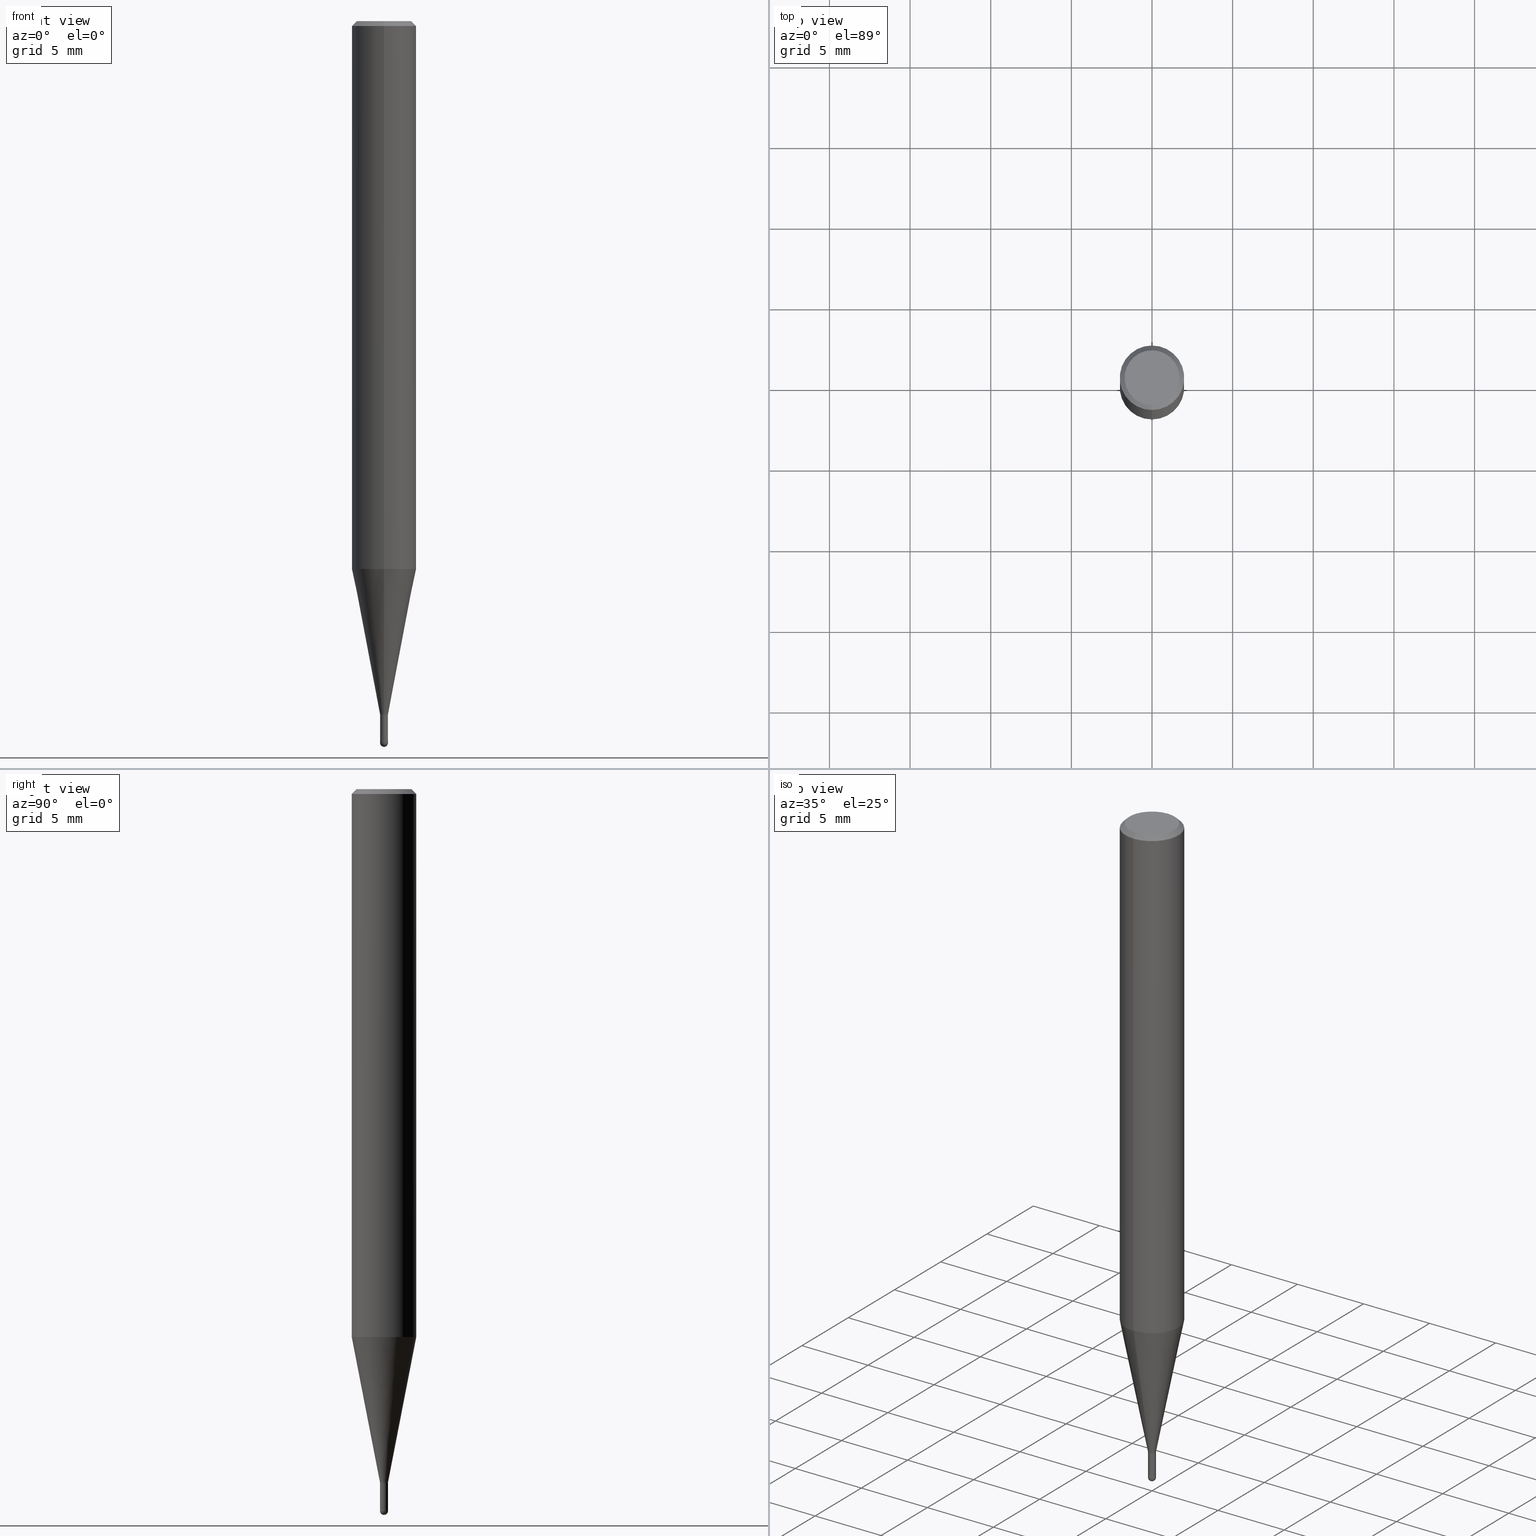
[diagram: canonical four-view strip — front | top / right | iso, engineering-drawing reading convention]
A machine part, canonical four-view strip (front | top / right | iso — engineering-drawing reading convention). The complete STEP part file that produces these views, byte-faithful:
ISO-10303-21;
HEADER;
FILE_DESCRIPTION(('no description'),'unknown implementation level');
FILE_NAME('CSELB2005-020-Huellk.stp','  ',('CIMSOURCE GmbH'),('CADClick - KiM GmbH - www.kimweb.de'),'unknown preprocess','ACIS','unknown authorization');
FILE_SCHEMA(('automotive_design'));
ENDSEC;
DATA;
#1=MECHANICAL_DESIGN_GEOMETRIC_PRESENTATION_REPRESENTATION(' ',(#14,#15,#16,#17,#18,#19,#20,#21,#22,#23,#24,#25,#26,#27,#28,#29,#30,#31,#32,#33,#34,#35,#36,#37,#38,#39,#40,#41,#42,#43,#44,#45,#46,#47,#48,#49,#50,#51,#52,#53,#54,#55,#56,#57,#58,#59,#60,#61,#62,#63,#64,#65,#66,#67,#68,#69,#70,#71,#72,#73,#74),#10);
#2=PRODUCT_DEFINITION_CONTEXT('',#75,'design');
#3=APPLICATION_PROTOCOL_DEFINITION('INTERNATIONAL STANDARD','automotive_design',1994,#75);
#4=PRODUCT_CATEGORY_RELATIONSHIP('NONE','NONE',#76,#77);
#5=SHAPE_DEFINITION_REPRESENTATION(#78,#79);
#6=PRODUCT_DEFINITION_CONTEXT('',#80,'design');
#7=APPLICATION_PROTOCOL_DEFINITION('INTERNATIONAL STANDARD','automotive_design',1994,#80);
#8=PRODUCT_CATEGORY_RELATIONSHIP('NONE','NONE',#81,#82);
#9=SHAPE_DEFINITION_REPRESENTATION(#83,#84);
#10= (GEOMETRIC_REPRESENTATION_CONTEXT(3)GLOBAL_UNCERTAINTY_ASSIGNED_CONTEXT((#87))GLOBAL_UNIT_ASSIGNED_CONTEXT((#89,#90,#91))REPRESENTATION_CONTEXT('NONE','WORKSPACE'));
#14=STYLED_ITEM('',(#93),#94);
#15=STYLED_ITEM('',(#95),#96);
#16=STYLED_ITEM('',(#97),#98);
#17=STYLED_ITEM('',(#99),#100);
#18=STYLED_ITEM('',(#101),#102);
#19=STYLED_ITEM('',(#103),#104);
#20=STYLED_ITEM('',(#105),#106);
#21=STYLED_ITEM('',(#107),#108);
#22=STYLED_ITEM('',(#109),#110);
#23=STYLED_ITEM('',(#111),#112);
#24=STYLED_ITEM('',(#113),#114);
#25=STYLED_ITEM('',(#115),#116);
#26=STYLED_ITEM('',(#117),#118);
#27=STYLED_ITEM('',(#119),#120);
#28=STYLED_ITEM('',(#121),#122);
#29=STYLED_ITEM('',(#123),#124);
#30=STYLED_ITEM('',(#125),#126);
#31=STYLED_ITEM('',(#127),#128);
#32=STYLED_ITEM('',(#129),#130);
#33=STYLED_ITEM('',(#131),#132);
#34=STYLED_ITEM('',(#133),#134);
#35=STYLED_ITEM('',(#135),#136);
#36=STYLED_ITEM('',(#137),#138);
#37=STYLED_ITEM('',(#139),#140);
#38=STYLED_ITEM('',(#141),#142);
#39=STYLED_ITEM('',(#143),#144);
#40=STYLED_ITEM('',(#145),#146);
#41=STYLED_ITEM('',(#147),#148);
#42=STYLED_ITEM('',(#149),#150);
#43=STYLED_ITEM('',(#151),#152);
#44=STYLED_ITEM('',(#153),#154);
#45=STYLED_ITEM('',(#155),#156);
#46=STYLED_ITEM('',(#157),#158);
#47=STYLED_ITEM('',(#159),#160);
#48=STYLED_ITEM('',(#161),#162);
#49=STYLED_ITEM('',(#163),#164);
#50=STYLED_ITEM('',(#165),#166);
#51=STYLED_ITEM('',(#167),#168);
#52=STYLED_ITEM('',(#169),#170);
#53=STYLED_ITEM('',(#171),#172);
#54=STYLED_ITEM('',(#173),#174);
#55=STYLED_ITEM('',(#175),#176);
#56=STYLED_ITEM('',(#177),#178);
#57=STYLED_ITEM('',(#179),#180);
#58=STYLED_ITEM('',(#181),#182);
#59=STYLED_ITEM('',(#183),#184);
#60=STYLED_ITEM('',(#185),#186);
#61=STYLED_ITEM('',(#187),#188);
#62=STYLED_ITEM('',(#189),#190);
#63=STYLED_ITEM('',(#191),#192);
#64=STYLED_ITEM('',(#193),#194);
#65=STYLED_ITEM('',(#195),#196);
#66=STYLED_ITEM('',(#197),#198);
#67=STYLED_ITEM('',(#199),#200);
#68=STYLED_ITEM('',(#201),#202);
#69=STYLED_ITEM('',(#203),#204);
#70=STYLED_ITEM('',(#205),#206);
#71=STYLED_ITEM('',(#207),#208);
#72=STYLED_ITEM('',(#209),#210);
#73=STYLED_ITEM('',(#211),#212);
#74=STYLED_ITEM('',(#213),#214);
#75=APPLICATION_CONTEXT(' ');
#76=PRODUCT_CATEGORY('part','NONE');
#77=PRODUCT_RELATED_PRODUCT_CATEGORY('detail',' ',(#215));
#78=PRODUCT_DEFINITION_SHAPE('NONE','NONE',#216);
#79=ADVANCED_BREP_SHAPE_REPRESENTATION('1',(#194,#217),#10);
#80=APPLICATION_CONTEXT(' ');
#81=PRODUCT_CATEGORY('part','NONE');
#82=PRODUCT_RELATED_PRODUCT_CATEGORY('detail',' ',(#218));
#83=PRODUCT_DEFINITION_SHAPE('NONE','NONE',#219);
#84=ADVANCED_BREP_SHAPE_REPRESENTATION('2',(#100,#220),#10);
#87=UNCERTAINTY_MEASURE_WITH_UNIT(LENGTH_MEASURE(1.0E-006),#89,'','');
#89= (CONVERSION_BASED_UNIT('MILLIMETRE',#223)LENGTH_UNIT()NAMED_UNIT(#226));
#90= (NAMED_UNIT(#228)PLANE_ANGLE_UNIT()SI_UNIT($,.RADIAN.));
#91= (NAMED_UNIT(#228)SOLID_ANGLE_UNIT()SI_UNIT($,.STERADIAN.));
#93=PRESENTATION_STYLE_ASSIGNMENT((#234));
#94=VERTEX_POINT('',#235);
#95=PRESENTATION_STYLE_ASSIGNMENT((#236));
#96=EDGE_CURVE('',#146,#140,#237,.T.);
#97=PRESENTATION_STYLE_ASSIGNMENT((#238));
#98=VERTEX_POINT('',#239);
#99=PRESENTATION_STYLE_ASSIGNMENT((#240));
#100=MANIFOLD_SOLID_BREP('2',#241);
#101=PRESENTATION_STYLE_ASSIGNMENT((#242));
#102=EDGE_CURVE('',#188,#146,#243,.T.);
#103=PRESENTATION_STYLE_ASSIGNMENT((#244));
#104=ADVANCED_FACE('',(#245),#246,.T.);
#105=PRESENTATION_STYLE_ASSIGNMENT((#247));
#106=VERTEX_POINT('',#248);
#107=PRESENTATION_STYLE_ASSIGNMENT((#249));
#108=ADVANCED_FACE('',(#250),#251,.T.);
#109=PRESENTATION_STYLE_ASSIGNMENT((#252));
#110=EDGE_CURVE('',#188,#178,#253,.T.);
#111=PRESENTATION_STYLE_ASSIGNMENT((#254));
#112=VERTEX_POINT('',#255);
#113=PRESENTATION_STYLE_ASSIGNMENT((#256));
#114=ADVANCED_FACE('',(#257),#258,.T.);
#115=PRESENTATION_STYLE_ASSIGNMENT((#259));
#116=ADVANCED_FACE('',(#260),#261,.T.);
#117=PRESENTATION_STYLE_ASSIGNMENT((#262));
#118=ADVANCED_FACE('',(#263,#264),#265,.T.);
#119=PRESENTATION_STYLE_ASSIGNMENT((#266));
#120=VERTEX_POINT('',#267);
#121=PRESENTATION_STYLE_ASSIGNMENT((#268));
#122=VERTEX_POINT('',#269);
#123=PRESENTATION_STYLE_ASSIGNMENT((#270));
#124=ADVANCED_FACE('',(#271),#272,.T.);
#125=PRESENTATION_STYLE_ASSIGNMENT((#273));
#126=VERTEX_POINT('',#274);
#127=PRESENTATION_STYLE_ASSIGNMENT((#275));
#128=EDGE_CURVE('',#144,#98,#276,.T.);
#129=PRESENTATION_STYLE_ASSIGNMENT((#277));
#130=EDGE_CURVE('',#120,#182,#278,.T.);
#131=PRESENTATION_STYLE_ASSIGNMENT((#279));
#132=VERTEX_POINT('',#280);
#133=PRESENTATION_STYLE_ASSIGNMENT((#281));
#134=VERTEX_POINT('',#282);
#135=PRESENTATION_STYLE_ASSIGNMENT((#283));
#136=VERTEX_POINT('',#284);
#137=PRESENTATION_STYLE_ASSIGNMENT((#285));
#138=ADVANCED_FACE('',(#286),#287,.T.);
#139=PRESENTATION_STYLE_ASSIGNMENT((#288));
#140=VERTEX_POINT('',#289);
#141=PRESENTATION_STYLE_ASSIGNMENT((#290));
#142=EDGE_CURVE('',#106,#112,#291,.T.);
#143=PRESENTATION_STYLE_ASSIGNMENT((#292));
#144=VERTEX_POINT('',#293);
#145=PRESENTATION_STYLE_ASSIGNMENT((#294));
#146=VERTEX_POINT('',#295);
#147=PRESENTATION_STYLE_ASSIGNMENT((#296));
#148=EDGE_CURVE('',#136,#126,#297,.T.);
#149=PRESENTATION_STYLE_ASSIGNMENT((#298));
#150=EDGE_CURVE('',#126,#94,#299,.T.);
#151=PRESENTATION_STYLE_ASSIGNMENT((#300));
#152=EDGE_CURVE('',#144,#112,#301,.T.);
#153=PRESENTATION_STYLE_ASSIGNMENT((#302));
#154=EDGE_CURVE('',#94,#132,#303,.T.);
#155=PRESENTATION_STYLE_ASSIGNMENT((#304));
#156=EDGE_CURVE('',#122,#136,#305,.T.);
#157=PRESENTATION_STYLE_ASSIGNMENT((#306));
#158=EDGE_CURVE('',#112,#144,#307,.T.);
#159=PRESENTATION_STYLE_ASSIGNMENT((#308));
#160=EDGE_CURVE('',#94,#122,#309,.T.);
#161=PRESENTATION_STYLE_ASSIGNMENT((#310));
#162=EDGE_CURVE('',#126,#136,#311,.T.);
#163=PRESENTATION_STYLE_ASSIGNMENT((#312));
#164=ADVANCED_FACE('',(#313),#314,.T.);
#165=PRESENTATION_STYLE_ASSIGNMENT((#315));
#166=ADVANCED_FACE('',(#316),#317,.T.);
#167=PRESENTATION_STYLE_ASSIGNMENT((#318));
#168=ADVANCED_FACE('',(#319),#320,.T.);
#169=PRESENTATION_STYLE_ASSIGNMENT((#321));
#170=ADVANCED_FACE('',(#322),#323,.T.);
#171=PRESENTATION_STYLE_ASSIGNMENT((#324));
#172=EDGE_CURVE('',#132,#134,#325,.T.);
#173=PRESENTATION_STYLE_ASSIGNMENT((#326));
#174=ADVANCED_FACE('',(#327),#328,.T.);
#175=PRESENTATION_STYLE_ASSIGNMENT((#329));
#176=EDGE_CURVE('',#106,#98,#330,.T.);
#177=PRESENTATION_STYLE_ASSIGNMENT((#331));
#178=VERTEX_POINT('',#332);
#179=PRESENTATION_STYLE_ASSIGNMENT((#333));
#180=EDGE_CURVE('',#178,#188,#334,.T.);
#181=PRESENTATION_STYLE_ASSIGNMENT((#335));
#182=VERTEX_POINT('',#336);
#183=PRESENTATION_STYLE_ASSIGNMENT((#337));
#184=EDGE_CURVE('',#120,#144,#338,.T.);
#185=PRESENTATION_STYLE_ASSIGNMENT((#339));
#186=EDGE_CURVE('',#112,#182,#340,.T.);
#187=PRESENTATION_STYLE_ASSIGNMENT((#341));
#188=VERTEX_POINT('',#342);
#189=PRESENTATION_STYLE_ASSIGNMENT((#343));
#190=EDGE_CURVE('',#98,#106,#344,.T.);
#191=PRESENTATION_STYLE_ASSIGNMENT((#345));
#192=EDGE_CURVE('',#182,#120,#346,.T.);
#193=PRESENTATION_STYLE_ASSIGNMENT((#347));
#194=MANIFOLD_SOLID_BREP('1',#348);
#195=PRESENTATION_STYLE_ASSIGNMENT((#349));
#196=EDGE_CURVE('',#122,#94,#350,.T.);
#197=PRESENTATION_STYLE_ASSIGNMENT((#351));
#198=ADVANCED_FACE('',(#352),#353,.T.);
#199=PRESENTATION_STYLE_ASSIGNMENT((#354));
#200=EDGE_CURVE('',#140,#178,#355,.T.);
#201=PRESENTATION_STYLE_ASSIGNMENT((#356));
#202=EDGE_CURVE('',#140,#146,#357,.T.);
#203=PRESENTATION_STYLE_ASSIGNMENT((#358));
#204=ADVANCED_FACE('',(#359),#360,.T.);
#205=PRESENTATION_STYLE_ASSIGNMENT((#361));
#206=EDGE_CURVE('',#140,#146,#362,.T.);
#207=PRESENTATION_STYLE_ASSIGNMENT((#363));
#208=EDGE_CURVE('',#134,#122,#364,.T.);
#209=PRESENTATION_STYLE_ASSIGNMENT((#365));
#210=ADVANCED_FACE('',(#366),#367,.T.);
#211=PRESENTATION_STYLE_ASSIGNMENT((#368));
#212=EDGE_CURVE('',#134,#132,#369,.T.);
#213=PRESENTATION_STYLE_ASSIGNMENT((#370));
#214=ADVANCED_FACE('',(#371),#372,.T.);
#215=PRODUCT('1','1','PART-1-DESC',(#373));
#216=PRODUCT_DEFINITION('NONE','NONE',#374,#2);
#217=AXIS2_PLACEMENT_3D('',#375,#376,#377);
#218=PRODUCT('2','2','PART-2-DESC',(#378));
#219=PRODUCT_DEFINITION('NONE','NONE',#379,#6);
#220=AXIS2_PLACEMENT_3D('',#380,#381,#382);
#223=LENGTH_MEASURE_WITH_UNIT(LENGTH_MEASURE(1.0),#383);
#226=DIMENSIONAL_EXPONENTS(1.0,0.0,0.0,0.0,0.0,0.0,0.0);
#228=DIMENSIONAL_EXPONENTS(0.0,0.0,0.0,0.0,0.0,0.0,0.0);
#234=POINT_STYLE(' ',#384,POSITIVE_LENGTH_MEASURE(1.0E-006),#385);
#235=CARTESIAN_POINT('',(2.99967326368791E-017,-0.24495,-43.0));
#236=CURVE_STYLE('',#386,POSITIVE_LENGTH_MEASURE(1.0E-006),#387);
#237=CIRCLE('',#388,0.25);
#238=POINT_STYLE(' ',#389,POSITIVE_LENGTH_MEASURE(1.0E-006),#390);
#239=CARTESIAN_POINT('',(0.0,2.0,-33.971));
#240=SURFACE_STYLE_USAGE(.BOTH.,#391);
#241=CLOSED_SHELL('',(#116,#210,#124,#108,#214));
#242=CURVE_STYLE('',#392,POSITIVE_LENGTH_MEASURE(1.0E-006),#393);
#243=LINE('',#394,#395);
#244=SURFACE_STYLE_USAGE(.BOTH.,#396);
#245=FACE_OUTER_BOUND('',#397,.T.);
#246=CYLINDRICAL_SURFACE('',#398,2.0);
#247=POINT_STYLE(' ',#399,POSITIVE_LENGTH_MEASURE(1.0E-006),#400);
#248=CARTESIAN_POINT('',(2.44921270764475E-016,-2.0,-33.971));
#249=SURFACE_STYLE_USAGE(.BOTH.,#401);
#250=FACE_OUTER_BOUND('',#402,.T.);
#251=CONICAL_SURFACE('',#403,0.24995,0.000666666567901188);
#252=CURVE_STYLE('',#404,POSITIVE_LENGTH_MEASURE(1.0E-006),#405);
#253=CIRCLE('',#406,0.2499);
#254=POINT_STYLE(' ',#407,POSITIVE_LENGTH_MEASURE(1.0E-006),#408);
#255=CARTESIAN_POINT('',(2.44921270764475E-016,-2.0,-0.299999999999997));
#256=SURFACE_STYLE_USAGE(.BOTH.,#409);
#257=FACE_OUTER_BOUND('',#410,.T.);
#258=CONICAL_SURFACE('',#411,1.12245,0.191979834546789);
#259=SURFACE_STYLE_USAGE(.BOTH.,#412);
#260=FACE_OUTER_BOUND('',#413,.T.);
#261=SPHERICAL_SURFACE('',#414,0.25);
#262=SURFACE_STYLE_USAGE(.BOTH.,#415);
#263=FACE_OUTER_BOUND('',#416,.T.);
#264=FACE_BOUND('',#417,.T.);
#265=PLANE('',#418);
#266=POINT_STYLE(' ',#419,POSITIVE_LENGTH_MEASURE(1.0E-006),#420);
#267=CARTESIAN_POINT('',(0.0,1.7,0.0));
#268=POINT_STYLE(' ',#421,POSITIVE_LENGTH_MEASURE(1.0E-006),#422);
#269=CARTESIAN_POINT('',(0.0,0.24495,-43.0));
#270=SURFACE_STYLE_USAGE(.BOTH.,#423);
#271=FACE_OUTER_BOUND('',#424,.T.);
#272=PLANE('',#425);
#273=POINT_STYLE(' ',#426,POSITIVE_LENGTH_MEASURE(1.0E-006),#427);
#274=CARTESIAN_POINT('',(2.99967326368791E-017,-0.24495,-44.6));
#275=CURVE_STYLE('',#428,POSITIVE_LENGTH_MEASURE(1.0E-006),#429);
#276=LINE('',#430,#431);
#277=CURVE_STYLE('',#432,POSITIVE_LENGTH_MEASURE(1.0E-006),#433);
#278=CIRCLE('',#434,1.7);
#279=POINT_STYLE(' ',#435,POSITIVE_LENGTH_MEASURE(1.0E-006),#436);
#280=CARTESIAN_POINT('',(2.44915147732706E-016,-1.99995,-33.971));
#281=POINT_STYLE(' ',#437,POSITIVE_LENGTH_MEASURE(1.0E-006),#438);
#282=CARTESIAN_POINT('',(0.0,1.99995,-33.971));
#283=POINT_STYLE(' ',#439,POSITIVE_LENGTH_MEASURE(1.0E-006),#440);
#284=CARTESIAN_POINT('',(0.0,0.24495,-44.6));
#285=SURFACE_STYLE_USAGE(.BOTH.,#441);
#286=FACE_OUTER_BOUND('',#442,.T.);
#287=PLANE('',#443);
#288=POINT_STYLE(' ',#444,POSITIVE_LENGTH_MEASURE(1.0E-006),#445);
#289=CARTESIAN_POINT('',(3.06151588455594E-017,-0.25,-44.75));
#290=CURVE_STYLE('',#446,POSITIVE_LENGTH_MEASURE(1.0E-006),#447);
#291=LINE('',#448,#449);
#292=POINT_STYLE(' ',#450,POSITIVE_LENGTH_MEASURE(1.0E-006),#451);
#293=CARTESIAN_POINT('',(0.0,2.0,-0.299999999999997));
#294=POINT_STYLE(' ',#452,POSITIVE_LENGTH_MEASURE(1.0E-006),#453);
#295=CARTESIAN_POINT('',(0.0,0.25,-44.75));
#296=CURVE_STYLE('',#454,POSITIVE_LENGTH_MEASURE(1.0E-006),#455);
#297=CIRCLE('',#456,0.24495);
#298=CURVE_STYLE('',#457,POSITIVE_LENGTH_MEASURE(1.0E-006),#458);
#299=LINE('',#459,#460);
#300=CURVE_STYLE('',#461,POSITIVE_LENGTH_MEASURE(1.0E-006),#462);
#301=CIRCLE('',#463,2.0);
#302=CURVE_STYLE('',#464,POSITIVE_LENGTH_MEASURE(1.0E-006),#465);
#303=LINE('',#466,#467);
#304=CURVE_STYLE('',#468,POSITIVE_LENGTH_MEASURE(1.0E-006),#469);
#305=LINE('',#470,#471);
#306=CURVE_STYLE('',#472,POSITIVE_LENGTH_MEASURE(1.0E-006),#473);
#307=CIRCLE('',#474,2.0);
#308=CURVE_STYLE('',#475,POSITIVE_LENGTH_MEASURE(1.0E-006),#476);
#309=CIRCLE('',#477,0.24495);
#310=CURVE_STYLE('',#478,POSITIVE_LENGTH_MEASURE(1.0E-006),#479);
#311=CIRCLE('',#480,0.24495);
#312=SURFACE_STYLE_USAGE(.BOTH.,#481);
#313=FACE_OUTER_BOUND('',#482,.T.);
#314=PLANE('',#483);
#315=SURFACE_STYLE_USAGE(.BOTH.,#484);
#316=FACE_OUTER_BOUND('',#485,.T.);
#317=CONICAL_SURFACE('',#486,1.12245,0.191979834546789);
#318=SURFACE_STYLE_USAGE(.BOTH.,#487);
#319=FACE_OUTER_BOUND('',#488,.T.);
#320=CYLINDRICAL_SURFACE('',#489,2.0);
#321=SURFACE_STYLE_USAGE(.BOTH.,#490);
#322=FACE_OUTER_BOUND('',#491,.T.);
#323=CONICAL_SURFACE('',#492,1.85,0.785398163397453);
#324=CURVE_STYLE('',#493,POSITIVE_LENGTH_MEASURE(1.0E-006),#494);
#325=CIRCLE('',#495,1.99995);
#326=SURFACE_STYLE_USAGE(.BOTH.,#496);
#327=FACE_OUTER_BOUND('',#497,.T.);
#328=CYLINDRICAL_SURFACE('',#498,0.24495);
#329=CURVE_STYLE('',#499,POSITIVE_LENGTH_MEASURE(1.0E-006),#500);
#330=CIRCLE('',#501,2.0);
#331=POINT_STYLE(' ',#502,POSITIVE_LENGTH_MEASURE(1.0E-006),#503);
#332=CARTESIAN_POINT('',(3.06029127820212E-017,-0.2499,-44.6));
#333=CURVE_STYLE('',#504,POSITIVE_LENGTH_MEASURE(1.0E-006),#505);
#334=CIRCLE('',#506,0.2499);
#335=POINT_STYLE(' ',#507,POSITIVE_LENGTH_MEASURE(1.0E-006),#508);
#336=CARTESIAN_POINT('',(2.08183080149804E-016,-1.7,0.0));
#337=CURVE_STYLE('',#509,POSITIVE_LENGTH_MEASURE(1.0E-006),#510);
#338=LINE('',#511,#512);
#339=CURVE_STYLE('',#513,POSITIVE_LENGTH_MEASURE(1.0E-006),#514);
#340=LINE('',#515,#516);
#341=POINT_STYLE(' ',#517,POSITIVE_LENGTH_MEASURE(1.0E-006),#518);
#342=CARTESIAN_POINT('',(0.0,0.2499,-44.6));
#343=CURVE_STYLE('',#519,POSITIVE_LENGTH_MEASURE(1.0E-006),#520);
#344=CIRCLE('',#521,2.0);
#345=CURVE_STYLE('',#522,POSITIVE_LENGTH_MEASURE(1.0E-006),#523);
#346=CIRCLE('',#524,1.7);
#347=SURFACE_STYLE_USAGE(.BOTH.,#525);
#348=CLOSED_SHELL('',(#198,#166,#168,#204,#118,#164,#170,#104,#114,#174,#138));
#349=CURVE_STYLE('',#526,POSITIVE_LENGTH_MEASURE(1.0E-006),#527);
#350=CIRCLE('',#528,0.24495);
#351=SURFACE_STYLE_USAGE(.BOTH.,#529);
#352=FACE_OUTER_BOUND('',#530,.T.);
#353=CYLINDRICAL_SURFACE('',#531,0.24495);
#354=CURVE_STYLE('',#532,POSITIVE_LENGTH_MEASURE(1.0E-006),#533);
#355=LINE('',#534,#535);
#356=CURVE_STYLE('',#536,POSITIVE_LENGTH_MEASURE(1.0E-006),#537);
#357=CIRCLE('',#538,0.25);
#358=SURFACE_STYLE_USAGE(.BOTH.,#539);
#359=FACE_OUTER_BOUND('',#540,.T.);
#360=CONICAL_SURFACE('',#541,1.85,0.785398163397453);
#361=CURVE_STYLE('',#542,POSITIVE_LENGTH_MEASURE(1.0E-006),#543);
#362=CIRCLE('',#544,0.25);
#363=CURVE_STYLE('',#545,POSITIVE_LENGTH_MEASURE(1.0E-006),#546);
#364=LINE('',#547,#548);
#365=SURFACE_STYLE_USAGE(.BOTH.,#549);
#366=FACE_OUTER_BOUND('',#550,.T.);
#367=CONICAL_SURFACE('',#551,0.24995,0.000666666567901188);
#368=CURVE_STYLE('',#552,POSITIVE_LENGTH_MEASURE(1.0E-006),#553);
#369=CIRCLE('',#554,1.99995);
#370=SURFACE_STYLE_USAGE(.BOTH.,#555);
#371=FACE_OUTER_BOUND('',#556,.T.);
#372=SPHERICAL_SURFACE('',#557,0.25);
#373=PRODUCT_CONTEXT('',#75,'mechanical');
#374=PRODUCT_DEFINITION_FORMATION_WITH_SPECIFIED_SOURCE(' ','NONE',#215,.NOT_KNOWN.);
#375=CARTESIAN_POINT('',(0.0,0.0,0.0));
#376=DIRECTION('',(0.0,0.0,1.0));
#377=DIRECTION('',(1.0,0.0,0.0));
#378=PRODUCT_CONTEXT('',#80,'mechanical');
#379=PRODUCT_DEFINITION_FORMATION_WITH_SPECIFIED_SOURCE(' ','NONE',#218,.NOT_KNOWN.);
#380=CARTESIAN_POINT('',(0.0,0.0,0.0));
#381=DIRECTION('',(0.0,0.0,1.0));
#382=DIRECTION('',(1.0,0.0,0.0));
#383= (NAMED_UNIT(#226)LENGTH_UNIT()SI_UNIT(.MILLI.,.METRE.));
#384=PRE_DEFINED_MARKER('');
#385=COLOUR_RGB('',0.498039215803146,0.498039215803146,0.498039215803146);
#386=DRAUGHTING_PRE_DEFINED_CURVE_FONT('continuous');
#387=COLOUR_RGB('',0.800000011920929,0.800000011920929,0.800000011920929);
#388=AXIS2_PLACEMENT_3D('',#559,#560,#561);
#389=PRE_DEFINED_MARKER('');
#390=COLOUR_RGB('',0.498039215803146,0.498039215803146,0.498039215803146);
#391=SURFACE_SIDE_STYLE('',(#562));
#392=DRAUGHTING_PRE_DEFINED_CURVE_FONT('continuous');
#393=COLOUR_RGB('',0.800000011920929,0.800000011920929,0.800000011920929);
#394=CARTESIAN_POINT('',(-3.06090358137903E-017,0.24995,-44.675));
#395=VECTOR('',#563,1.0);
#396=SURFACE_SIDE_STYLE('',(#564));
#397=EDGE_LOOP('',(#565,#566,#567,#568));
#398=AXIS2_PLACEMENT_3D('',#569,#570,#571);
#399=PRE_DEFINED_MARKER('');
#400=COLOUR_RGB('',0.498039215803146,0.498039215803146,0.498039215803146);
#401=SURFACE_SIDE_STYLE('',(#572));
#402=EDGE_LOOP('',(#573,#574,#575,#576));
#403=AXIS2_PLACEMENT_3D('',#577,#578,#579);
#404=DRAUGHTING_PRE_DEFINED_CURVE_FONT('continuous');
#405=COLOUR_RGB('',0.800000011920929,0.800000011920929,0.800000011920929);
#406=AXIS2_PLACEMENT_3D('',#580,#581,#582);
#407=PRE_DEFINED_MARKER('');
#408=COLOUR_RGB('',0.498039215803146,0.498039215803146,0.498039215803146);
#409=SURFACE_SIDE_STYLE('',(#583));
#410=EDGE_LOOP('',(#584,#585,#586,#587));
#411=AXIS2_PLACEMENT_3D('',#588,#589,#590);
#412=SURFACE_SIDE_STYLE('',(#591));
#413=EDGE_LOOP('',(#592,#593));
#414=AXIS2_PLACEMENT_3D('',#594,#595,#596);
#415=SURFACE_SIDE_STYLE('',(#597));
#416=EDGE_LOOP('',(#598,#599));
#417=EDGE_LOOP('',(#600,#601));
#418=AXIS2_PLACEMENT_3D('',#602,#603,#604);
#419=PRE_DEFINED_MARKER('');
#420=COLOUR_RGB('',0.498039215803146,0.498039215803146,0.498039215803146);
#421=PRE_DEFINED_MARKER('');
#422=COLOUR_RGB('',0.498039215803146,0.498039215803146,0.498039215803146);
#423=SURFACE_SIDE_STYLE('',(#605));
#424=EDGE_LOOP('',(#606,#607));
#425=AXIS2_PLACEMENT_3D('',#608,#609,#610);
#426=PRE_DEFINED_MARKER('');
#427=COLOUR_RGB('',0.498039215803146,0.498039215803146,0.498039215803146);
#428=DRAUGHTING_PRE_DEFINED_CURVE_FONT('continuous');
#429=COLOUR_RGB('',0.498039215803146,0.498039215803146,0.498039215803146);
#430=CARTESIAN_POINT('',(-2.44921270764475E-016,2.0,-17.1355));
#431=VECTOR('',#611,1.0);
#432=DRAUGHTING_PRE_DEFINED_CURVE_FONT('continuous');
#433=COLOUR_RGB('',0.498039215803146,0.498039215803146,0.498039215803146);
#434=AXIS2_PLACEMENT_3D('',#612,#613,#614);
#435=PRE_DEFINED_MARKER('');
#436=COLOUR_RGB('',0.498039215803146,0.498039215803146,0.498039215803146);
#437=PRE_DEFINED_MARKER('');
#438=COLOUR_RGB('',0.498039215803146,0.498039215803146,0.498039215803146);
#439=PRE_DEFINED_MARKER('');
#440=COLOUR_RGB('',0.498039215803146,0.498039215803146,0.498039215803146);
#441=SURFACE_SIDE_STYLE('',(#615));
#442=EDGE_LOOP('',(#616,#617));
#443=AXIS2_PLACEMENT_3D('',#618,#619,#620);
#444=PRE_DEFINED_MARKER('');
#445=COLOUR_RGB('',0.800000011920929,0.800000011920929,0.800000011920929);
#446=DRAUGHTING_PRE_DEFINED_CURVE_FONT('continuous');
#447=COLOUR_RGB('',0.498039215803146,0.498039215803146,0.498039215803146);
#448=CARTESIAN_POINT('',(2.44921270764475E-016,-2.0,-17.1355));
#449=VECTOR('',#621,1.0);
#450=PRE_DEFINED_MARKER('');
#451=COLOUR_RGB('',0.498039215803146,0.498039215803146,0.498039215803146);
#452=PRE_DEFINED_MARKER('');
#453=COLOUR_RGB('',0.800000011920929,0.800000011920929,0.800000011920929);
#454=DRAUGHTING_PRE_DEFINED_CURVE_FONT('continuous');
#455=COLOUR_RGB('',0.498039215803146,0.498039215803146,0.498039215803146);
#456=AXIS2_PLACEMENT_3D('',#622,#623,#624);
#457=DRAUGHTING_PRE_DEFINED_CURVE_FONT('continuous');
#458=COLOUR_RGB('',0.498039215803146,0.498039215803146,0.498039215803146);
#459=CARTESIAN_POINT('',(2.99967326368791E-017,-0.24495,-43.8));
#460=VECTOR('',#625,1.0);
#461=DRAUGHTING_PRE_DEFINED_CURVE_FONT('continuous');
#462=COLOUR_RGB('',0.498039215803146,0.498039215803146,0.498039215803146);
#463=AXIS2_PLACEMENT_3D('',#626,#627,#628);
#464=DRAUGHTING_PRE_DEFINED_CURVE_FONT('continuous');
#465=COLOUR_RGB('',0.498039215803146,0.498039215803146,0.498039215803146);
#466=CARTESIAN_POINT('',(1.37455940184793E-016,-1.12245,-38.4855));
#467=VECTOR('',#629,1.0);
#468=DRAUGHTING_PRE_DEFINED_CURVE_FONT('continuous');
#469=COLOUR_RGB('',0.498039215803146,0.498039215803146,0.498039215803146);
#470=CARTESIAN_POINT('',(-2.99967326368791E-017,0.24495,-43.8));
#471=VECTOR('',#630,1.0);
#472=DRAUGHTING_PRE_DEFINED_CURVE_FONT('continuous');
#473=COLOUR_RGB('',0.498039215803146,0.498039215803146,0.498039215803146);
#474=AXIS2_PLACEMENT_3D('',#631,#632,#633);
#475=DRAUGHTING_PRE_DEFINED_CURVE_FONT('continuous');
#476=COLOUR_RGB('',0.498039215803146,0.498039215803146,0.498039215803146);
#477=AXIS2_PLACEMENT_3D('',#634,#635,#636);
#478=DRAUGHTING_PRE_DEFINED_CURVE_FONT('continuous');
#479=COLOUR_RGB('',0.498039215803146,0.498039215803146,0.498039215803146);
#480=AXIS2_PLACEMENT_3D('',#637,#638,#639);
#481=SURFACE_SIDE_STYLE('',(#640));
#482=EDGE_LOOP('',(#641,#642));
#483=AXIS2_PLACEMENT_3D('',#643,#644,#645);
#484=SURFACE_SIDE_STYLE('',(#646));
#485=EDGE_LOOP('',(#647,#648,#649,#650));
#486=AXIS2_PLACEMENT_3D('',#651,#652,#653);
#487=SURFACE_SIDE_STYLE('',(#654));
#488=EDGE_LOOP('',(#655,#656,#657,#658));
#489=AXIS2_PLACEMENT_3D('',#659,#660,#661);
#490=SURFACE_SIDE_STYLE('',(#662));
#491=EDGE_LOOP('',(#663,#664,#665,#666));
#492=AXIS2_PLACEMENT_3D('',#667,#668,#669);
#493=DRAUGHTING_PRE_DEFINED_CURVE_FONT('continuous');
#494=COLOUR_RGB('',0.498039215803146,0.498039215803146,0.498039215803146);
#495=AXIS2_PLACEMENT_3D('',#670,#671,#672);
#496=SURFACE_SIDE_STYLE('',(#673));
#497=EDGE_LOOP('',(#674,#675,#676,#677));
#498=AXIS2_PLACEMENT_3D('',#678,#679,#680);
#499=DRAUGHTING_PRE_DEFINED_CURVE_FONT('continuous');
#500=COLOUR_RGB('',0.498039215803146,0.498039215803146,0.498039215803146);
#501=AXIS2_PLACEMENT_3D('',#681,#682,#683);
#502=PRE_DEFINED_MARKER('');
#503=COLOUR_RGB('',0.800000011920929,0.800000011920929,0.800000011920929);
#504=DRAUGHTING_PRE_DEFINED_CURVE_FONT('continuous');
#505=COLOUR_RGB('',0.800000011920929,0.800000011920929,0.800000011920929);
#506=AXIS2_PLACEMENT_3D('',#684,#685,#686);
#507=PRE_DEFINED_MARKER('');
#508=COLOUR_RGB('',0.498039215803146,0.498039215803146,0.498039215803146);
#509=DRAUGHTING_PRE_DEFINED_CURVE_FONT('continuous');
#510=COLOUR_RGB('',0.498039215803146,0.498039215803146,0.498039215803146);
#511=CARTESIAN_POINT('',(-2.2655217545714E-016,1.85,-0.149999999999999));
#512=VECTOR('',#687,1.0);
#513=DRAUGHTING_PRE_DEFINED_CURVE_FONT('continuous');
#514=COLOUR_RGB('',0.498039215803146,0.498039215803146,0.498039215803146);
#515=CARTESIAN_POINT('',(2.2655217545714E-016,-1.85,-0.149999999999999));
#516=VECTOR('',#688,1.0);
#517=PRE_DEFINED_MARKER('');
#518=COLOUR_RGB('',0.800000011920929,0.800000011920929,0.800000011920929);
#519=DRAUGHTING_PRE_DEFINED_CURVE_FONT('continuous');
#520=COLOUR_RGB('',0.498039215803146,0.498039215803146,0.498039215803146);
#521=AXIS2_PLACEMENT_3D('',#689,#690,#691);
#522=DRAUGHTING_PRE_DEFINED_CURVE_FONT('continuous');
#523=COLOUR_RGB('',0.498039215803146,0.498039215803146,0.498039215803146);
#524=AXIS2_PLACEMENT_3D('',#692,#693,#694);
#525=SURFACE_SIDE_STYLE('',(#695));
#526=DRAUGHTING_PRE_DEFINED_CURVE_FONT('continuous');
#527=COLOUR_RGB('',0.498039215803146,0.498039215803146,0.498039215803146);
#528=AXIS2_PLACEMENT_3D('',#696,#697,#698);
#529=SURFACE_SIDE_STYLE('',(#699));
#530=EDGE_LOOP('',(#700,#701,#702,#703));
#531=AXIS2_PLACEMENT_3D('',#704,#705,#706);
#532=DRAUGHTING_PRE_DEFINED_CURVE_FONT('continuous');
#533=COLOUR_RGB('',0.800000011920929,0.800000011920929,0.800000011920929);
#534=CARTESIAN_POINT('',(3.06090358137903E-017,-0.24995,-44.675));
#535=VECTOR('',#707,1.0);
#536=DRAUGHTING_PRE_DEFINED_CURVE_FONT('continuous');
#537=COLOUR_RGB('',0.800000011920929,0.800000011920929,0.800000011920929);
#538=AXIS2_PLACEMENT_3D('',#708,#709,#710);
#539=SURFACE_SIDE_STYLE('',(#711));
#540=EDGE_LOOP('',(#712,#713,#714,#715));
#541=AXIS2_PLACEMENT_3D('',#716,#717,#718);
#542=DRAUGHTING_PRE_DEFINED_CURVE_FONT('continuous');
#543=COLOUR_RGB('',0.800000011920929,0.800000011920929,0.800000011920929);
#544=AXIS2_PLACEMENT_3D('',#719,#720,#721);
#545=DRAUGHTING_PRE_DEFINED_CURVE_FONT('continuous');
#546=COLOUR_RGB('',0.498039215803146,0.498039215803146,0.498039215803146);
#547=CARTESIAN_POINT('',(-1.37455940184793E-016,1.12245,-38.4855));
#548=VECTOR('',#722,1.0);
#549=SURFACE_SIDE_STYLE('',(#723));
#550=EDGE_LOOP('',(#724,#725,#726,#727));
#551=AXIS2_PLACEMENT_3D('',#728,#729,#730);
#552=DRAUGHTING_PRE_DEFINED_CURVE_FONT('continuous');
#553=COLOUR_RGB('',0.498039215803146,0.498039215803146,0.498039215803146);
#554=AXIS2_PLACEMENT_3D('',#731,#732,#733);
#555=SURFACE_SIDE_STYLE('',(#734));
#556=EDGE_LOOP('',(#735,#736));
#557=AXIS2_PLACEMENT_3D('',#737,#738,#739);
#559=CARTESIAN_POINT('',(0.0,0.0,-44.75));
#560=DIRECTION('',(0.0,0.0,-1.0));
#561=DIRECTION('',(0.0,1.0,0.0));
#562=SURFACE_STYLE_FILL_AREA(#740);
#563=DIRECTION('',(-8.16404054458392E-020,0.000666666518518495,-0.999999777777852));
#564=SURFACE_STYLE_FILL_AREA(#741);
#565=ORIENTED_EDGE('',*,*,#128,.T.);
#566=ORIENTED_EDGE('',*,*,#176,.F.);
#567=ORIENTED_EDGE('',*,*,#142,.T.);
#568=ORIENTED_EDGE('',*,*,#158,.T.);
#569=CARTESIAN_POINT('',(0.0,0.0,-17.1355));
#570=DIRECTION('',(-0.0,-0.0,1.0));
#571=DIRECTION('',(0.0,1.0,0.0));
#572=SURFACE_STYLE_FILL_AREA(#742);
#573=ORIENTED_EDGE('',*,*,#102,.T.);
#574=ORIENTED_EDGE('',*,*,#206,.F.);
#575=ORIENTED_EDGE('',*,*,#200,.T.);
#576=ORIENTED_EDGE('',*,*,#180,.T.);
#577=CARTESIAN_POINT('',(0.0,0.0,-44.675));
#578=DIRECTION('',(0.0,-0.0,-1.0));
#579=DIRECTION('',(0.0,1.0,0.0));
#580=CARTESIAN_POINT('',(0.0,0.0,-44.6));
#581=DIRECTION('',(0.0,0.0,-1.0));
#582=DIRECTION('',(0.0,1.0,0.0));
#583=SURFACE_STYLE_FILL_AREA(#743);
#584=ORIENTED_EDGE('',*,*,#208,.T.);
#585=ORIENTED_EDGE('',*,*,#160,.F.);
#586=ORIENTED_EDGE('',*,*,#154,.T.);
#587=ORIENTED_EDGE('',*,*,#172,.T.);
#588=CARTESIAN_POINT('',(0.0,0.0,-38.4855));
#589=DIRECTION('',(-0.0,-0.0,1.0));
#590=DIRECTION('',(0.0,1.0,0.0));
#591=SURFACE_STYLE_FILL_AREA(#744);
#592=ORIENTED_EDGE('',*,*,#202,.F.);
#593=ORIENTED_EDGE('',*,*,#206,.T.);
#594=CARTESIAN_POINT('',(0.0,0.0,-44.75));
#595=DIRECTION('',(0.0,1.0,0.0));
#596=DIRECTION('',(0.0,0.0,-1.0));
#597=SURFACE_STYLE_FILL_AREA(#745);
#598=ORIENTED_EDGE('',*,*,#190,.T.);
#599=ORIENTED_EDGE('',*,*,#176,.T.);
#600=ORIENTED_EDGE('',*,*,#212,.F.);
#601=ORIENTED_EDGE('',*,*,#172,.F.);
#602=CARTESIAN_POINT('',(0.0,1.0,-33.971));
#603=DIRECTION('',(0.0,0.0,-1.0));
#604=DIRECTION('',(0.0,1.0,0.0));
#605=SURFACE_STYLE_FILL_AREA(#746);
#606=ORIENTED_EDGE('',*,*,#110,.F.);
#607=ORIENTED_EDGE('',*,*,#180,.F.);
#608=CARTESIAN_POINT('',(0.0,0.12495,-44.6));
#609=DIRECTION('',(-0.0,0.0,1.0));
#610=DIRECTION('',(0.0,-1.0,0.0));
#611=DIRECTION('',(0.0,0.0,-1.0));
#612=CARTESIAN_POINT('',(0.0,0.0,0.0));
#613=DIRECTION('',(0.0,0.0,-1.0));
#614=DIRECTION('',(0.0,1.0,0.0));
#615=SURFACE_STYLE_FILL_AREA(#747);
#616=ORIENTED_EDGE('',*,*,#148,.T.);
#617=ORIENTED_EDGE('',*,*,#162,.T.);
#618=CARTESIAN_POINT('',(0.0,0.122475,-44.6));
#619=DIRECTION('',(0.0,0.0,-1.0));
#620=DIRECTION('',(0.0,1.0,0.0));
#621=DIRECTION('',(-0.0,-0.0,1.0));
#622=CARTESIAN_POINT('',(0.0,0.0,-44.6));
#623=DIRECTION('',(0.0,0.0,-1.0));
#624=DIRECTION('',(0.0,1.0,0.0));
#625=DIRECTION('',(-0.0,-0.0,1.0));
#626=CARTESIAN_POINT('',(0.0,0.0,-0.299999999999997));
#627=DIRECTION('',(0.0,0.0,-1.0));
#628=DIRECTION('',(0.0,1.0,0.0));
#629=DIRECTION('',(2.336582348441E-017,-0.19080272947693,0.981628401394414));
#630=DIRECTION('',(0.0,0.0,-1.0));
#631=CARTESIAN_POINT('',(0.0,0.0,-0.299999999999997));
#632=DIRECTION('',(0.0,0.0,-1.0));
#633=DIRECTION('',(0.0,1.0,0.0));
#634=CARTESIAN_POINT('',(0.0,0.0,-43.0));
#635=DIRECTION('',(0.0,0.0,-1.0));
#636=DIRECTION('',(0.0,1.0,0.0));
#637=CARTESIAN_POINT('',(0.0,0.0,-44.6));
#638=DIRECTION('',(0.0,0.0,-1.0));
#639=DIRECTION('',(0.0,1.0,0.0));
#640=SURFACE_STYLE_FILL_AREA(#748);
#641=ORIENTED_EDGE('',*,*,#130,.F.);
#642=ORIENTED_EDGE('',*,*,#192,.F.);
#643=CARTESIAN_POINT('',(0.0,0.85,0.0));
#644=DIRECTION('',(-0.0,0.0,1.0));
#645=DIRECTION('',(0.0,-1.0,0.0));
#646=SURFACE_STYLE_FILL_AREA(#749);
#647=ORIENTED_EDGE('',*,*,#208,.F.);
#648=ORIENTED_EDGE('',*,*,#212,.T.);
#649=ORIENTED_EDGE('',*,*,#154,.F.);
#650=ORIENTED_EDGE('',*,*,#196,.F.);
#651=CARTESIAN_POINT('',(0.0,0.0,-38.4855));
#652=DIRECTION('',(-0.0,-0.0,1.0));
#653=DIRECTION('',(0.0,1.0,0.0));
#654=SURFACE_STYLE_FILL_AREA(#750);
#655=ORIENTED_EDGE('',*,*,#128,.F.);
#656=ORIENTED_EDGE('',*,*,#152,.T.);
#657=ORIENTED_EDGE('',*,*,#142,.F.);
#658=ORIENTED_EDGE('',*,*,#190,.F.);
#659=CARTESIAN_POINT('',(0.0,0.0,-17.1355));
#660=DIRECTION('',(-0.0,-0.0,1.0));
#661=DIRECTION('',(0.0,1.0,0.0));
#662=SURFACE_STYLE_FILL_AREA(#751);
#663=ORIENTED_EDGE('',*,*,#184,.T.);
#664=ORIENTED_EDGE('',*,*,#158,.F.);
#665=ORIENTED_EDGE('',*,*,#186,.T.);
#666=ORIENTED_EDGE('',*,*,#192,.T.);
#667=CARTESIAN_POINT('',(0.0,0.0,-0.149999999999999));
#668=DIRECTION('',(0.0,-0.0,-1.0));
#669=DIRECTION('',(0.0,1.0,0.0));
#670=CARTESIAN_POINT('',(0.0,0.0,-33.971));
#671=DIRECTION('',(0.0,0.0,-1.0));
#672=DIRECTION('',(0.0,1.0,0.0));
#673=SURFACE_STYLE_FILL_AREA(#752);
#674=ORIENTED_EDGE('',*,*,#156,.T.);
#675=ORIENTED_EDGE('',*,*,#162,.F.);
#676=ORIENTED_EDGE('',*,*,#150,.T.);
#677=ORIENTED_EDGE('',*,*,#160,.T.);
#678=CARTESIAN_POINT('',(0.0,0.0,-43.8));
#679=DIRECTION('',(-0.0,-0.0,1.0));
#680=DIRECTION('',(0.0,1.0,0.0));
#681=CARTESIAN_POINT('',(0.0,0.0,-33.971));
#682=DIRECTION('',(0.0,0.0,-1.0));
#683=DIRECTION('',(0.0,1.0,0.0));
#684=CARTESIAN_POINT('',(0.0,0.0,-44.6));
#685=DIRECTION('',(0.0,0.0,-1.0));
#686=DIRECTION('',(0.0,1.0,0.0));
#687=DIRECTION('',(-8.6592745707194E-017,0.707106781186551,-0.707106781186544));
#688=DIRECTION('',(-8.6592745707194E-017,0.707106781186551,0.707106781186544));
#689=CARTESIAN_POINT('',(0.0,0.0,-33.971));
#690=DIRECTION('',(0.0,0.0,-1.0));
#691=DIRECTION('',(0.0,1.0,0.0));
#692=CARTESIAN_POINT('',(0.0,0.0,0.0));
#693=DIRECTION('',(0.0,0.0,-1.0));
#694=DIRECTION('',(0.0,1.0,0.0));
#695=SURFACE_STYLE_FILL_AREA(#753);
#696=CARTESIAN_POINT('',(0.0,0.0,-43.0));
#697=DIRECTION('',(0.0,0.0,-1.0));
#698=DIRECTION('',(0.0,1.0,0.0));
#699=SURFACE_STYLE_FILL_AREA(#754);
#700=ORIENTED_EDGE('',*,*,#156,.F.);
#701=ORIENTED_EDGE('',*,*,#196,.T.);
#702=ORIENTED_EDGE('',*,*,#150,.F.);
#703=ORIENTED_EDGE('',*,*,#148,.F.);
#704=CARTESIAN_POINT('',(0.0,0.0,-43.8));
#705=DIRECTION('',(-0.0,-0.0,1.0));
#706=DIRECTION('',(0.0,1.0,0.0));
#707=DIRECTION('',(-8.16404054458392E-020,0.000666666518518495,0.999999777777852));
#708=CARTESIAN_POINT('',(0.0,0.0,-44.75));
#709=DIRECTION('',(1.0,0.0,1.22460635382238E-016));
#710=DIRECTION('',(-1.22460635382238E-016,0.0,1.0));
#711=SURFACE_STYLE_FILL_AREA(#755);
#712=ORIENTED_EDGE('',*,*,#184,.F.);
#713=ORIENTED_EDGE('',*,*,#130,.T.);
#714=ORIENTED_EDGE('',*,*,#186,.F.);
#715=ORIENTED_EDGE('',*,*,#152,.F.);
#716=CARTESIAN_POINT('',(0.0,0.0,-0.149999999999999));
#717=DIRECTION('',(0.0,-0.0,-1.0));
#718=DIRECTION('',(0.0,1.0,0.0));
#719=CARTESIAN_POINT('',(0.0,0.0,-44.75));
#720=DIRECTION('',(0.0,0.0,-1.0));
#721=DIRECTION('',(0.0,1.0,0.0));
#722=DIRECTION('',(2.336582348441E-017,-0.19080272947693,-0.981628401394414));
#723=SURFACE_STYLE_FILL_AREA(#756);
#724=ORIENTED_EDGE('',*,*,#102,.F.);
#725=ORIENTED_EDGE('',*,*,#110,.T.);
#726=ORIENTED_EDGE('',*,*,#200,.F.);
#727=ORIENTED_EDGE('',*,*,#96,.F.);
#728=CARTESIAN_POINT('',(0.0,0.0,-44.675));
#729=DIRECTION('',(0.0,-0.0,-1.0));
#730=DIRECTION('',(0.0,1.0,0.0));
#731=CARTESIAN_POINT('',(0.0,0.0,-33.971));
#732=DIRECTION('',(0.0,0.0,-1.0));
#733=DIRECTION('',(0.0,1.0,0.0));
#734=SURFACE_STYLE_FILL_AREA(#757);
#735=ORIENTED_EDGE('',*,*,#202,.T.);
#736=ORIENTED_EDGE('',*,*,#96,.T.);
#737=CARTESIAN_POINT('',(0.0,0.0,-44.75));
#738=DIRECTION('',(0.0,1.0,0.0));
#739=DIRECTION('',(0.0,0.0,-1.0));
#740=FILL_AREA_STYLE('',(#758));
#741=FILL_AREA_STYLE('',(#759));
#742=FILL_AREA_STYLE('',(#760));
#743=FILL_AREA_STYLE('',(#761));
#744=FILL_AREA_STYLE('',(#762));
#745=FILL_AREA_STYLE('',(#763));
#746=FILL_AREA_STYLE('',(#764));
#747=FILL_AREA_STYLE('',(#765));
#748=FILL_AREA_STYLE('',(#766));
#749=FILL_AREA_STYLE('',(#767));
#750=FILL_AREA_STYLE('',(#768));
#751=FILL_AREA_STYLE('',(#769));
#752=FILL_AREA_STYLE('',(#770));
#753=FILL_AREA_STYLE('',(#771));
#754=FILL_AREA_STYLE('',(#772));
#755=FILL_AREA_STYLE('',(#773));
#756=FILL_AREA_STYLE('',(#774));
#757=FILL_AREA_STYLE('',(#775));
#758=FILL_AREA_STYLE_COLOUR('',#776);
#759=FILL_AREA_STYLE_COLOUR('',#777);
#760=FILL_AREA_STYLE_COLOUR('',#778);
#761=FILL_AREA_STYLE_COLOUR('',#779);
#762=FILL_AREA_STYLE_COLOUR('',#780);
#763=FILL_AREA_STYLE_COLOUR('',#781);
#764=FILL_AREA_STYLE_COLOUR('',#782);
#765=FILL_AREA_STYLE_COLOUR('',#783);
#766=FILL_AREA_STYLE_COLOUR('',#784);
#767=FILL_AREA_STYLE_COLOUR('',#785);
#768=FILL_AREA_STYLE_COLOUR('',#786);
#769=FILL_AREA_STYLE_COLOUR('',#787);
#770=FILL_AREA_STYLE_COLOUR('',#788);
#771=FILL_AREA_STYLE_COLOUR('',#789);
#772=FILL_AREA_STYLE_COLOUR('',#790);
#773=FILL_AREA_STYLE_COLOUR('',#791);
#774=FILL_AREA_STYLE_COLOUR('',#792);
#775=FILL_AREA_STYLE_COLOUR('',#793);
#776=COLOUR_RGB('',0.800000011920929,0.800000011920929,0.800000011920929);
#777=COLOUR_RGB('',0.498039215803146,0.498039215803146,0.498039215803146);
#778=COLOUR_RGB('',0.800000011920929,0.800000011920929,0.800000011920929);
#779=COLOUR_RGB('',0.498039215803146,0.498039215803146,0.498039215803146);
#780=COLOUR_RGB('',0.800000011920929,0.800000011920929,0.800000011920929);
#781=COLOUR_RGB('',0.498039215803146,0.498039215803146,0.498039215803146);
#782=COLOUR_RGB('',0.800000011920929,0.800000011920929,0.800000011920929);
#783=COLOUR_RGB('',0.498039215803146,0.498039215803146,0.498039215803146);
#784=COLOUR_RGB('',0.498039215803146,0.498039215803146,0.498039215803146);
#785=COLOUR_RGB('',0.498039215803146,0.498039215803146,0.498039215803146);
#786=COLOUR_RGB('',0.498039215803146,0.498039215803146,0.498039215803146);
#787=COLOUR_RGB('',0.498039215803146,0.498039215803146,0.498039215803146);
#788=COLOUR_RGB('',0.498039215803146,0.498039215803146,0.498039215803146);
#789=COLOUR_RGB('',0.498039215803146,0.498039215803146,0.498039215803146);
#790=COLOUR_RGB('',0.498039215803146,0.498039215803146,0.498039215803146);
#791=COLOUR_RGB('',0.498039215803146,0.498039215803146,0.498039215803146);
#792=COLOUR_RGB('',0.800000011920929,0.800000011920929,0.800000011920929);
#793=COLOUR_RGB('',0.800000011920929,0.800000011920929,0.800000011920929);
#794=AXIS2_PLACEMENT_3D('PCS',#795,#796,#797);
#795=CARTESIAN_POINT('',(0.0,0.0,0.0));
#796=DIRECTION('',(0.0,0.0,1.0));
#797=DIRECTION('',(1.0,0.0,0.0));
#798=AXIS2_PLACEMENT_3D('CIP',#799,#800,#801);
#799=CARTESIAN_POINT('',(0.0,0.0,-45.0));
#800=DIRECTION('',(0.0,0.0,1.0));
#801=DIRECTION('',(1.0,0.0,0.0));
#802=AXIS2_PLACEMENT_3D('CRP',#803,#804,#805);
#803=CARTESIAN_POINT('',(-0.25,0.0,-45.0));
#804=DIRECTION('',(0.0,0.0,1.0));
#805=DIRECTION('',(1.0,0.0,0.0));
#806=AXIS2_PLACEMENT_3D('MCS',#807,#808,#809);
#807=CARTESIAN_POINT('',(0.0,0.0,-33.971));
#808=DIRECTION('',(0.0,0.0,1.0));
#809=DIRECTION('',(1.0,0.0,0.0));
#810=CONSTRUCTIVE_GEOMETRY_REPRESENTATION_RELATIONSHIP('coordinate systems',$,#79,#811);
#811=CONSTRUCTIVE_GEOMETRY_REPRESENTATION('coordinate systems',(#794,#798,#802,#806),#10);
ENDSEC;
END-ISO-10303-21;
